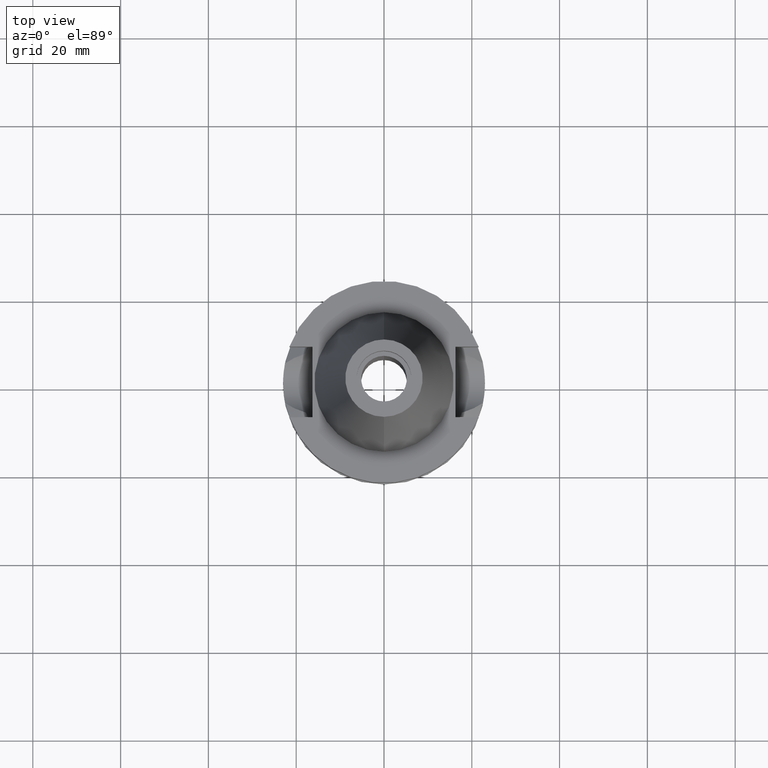
[diagram: clean part render]
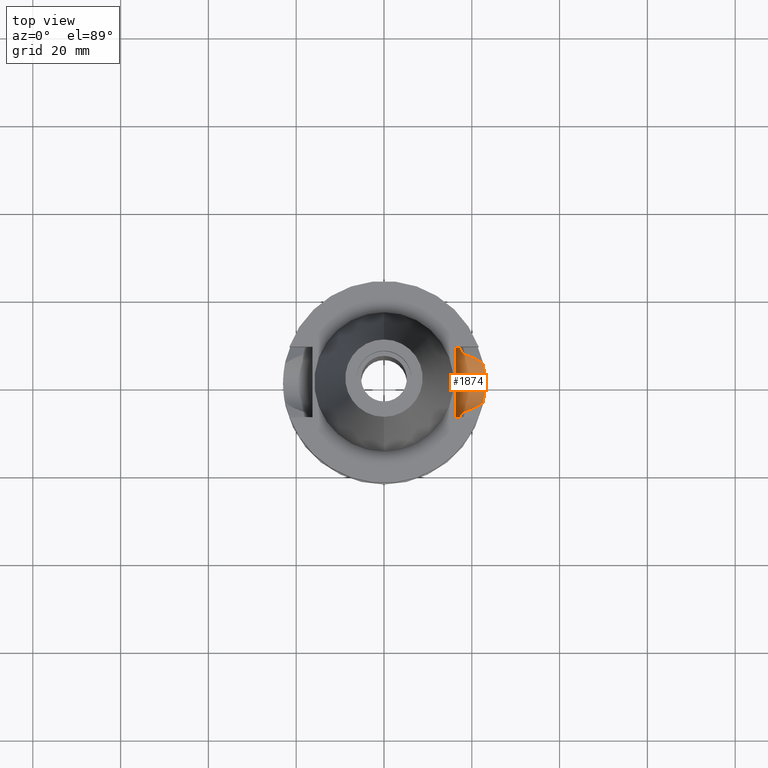
[diagram: same view with one face highlighted and labeled with its STEP entity id]
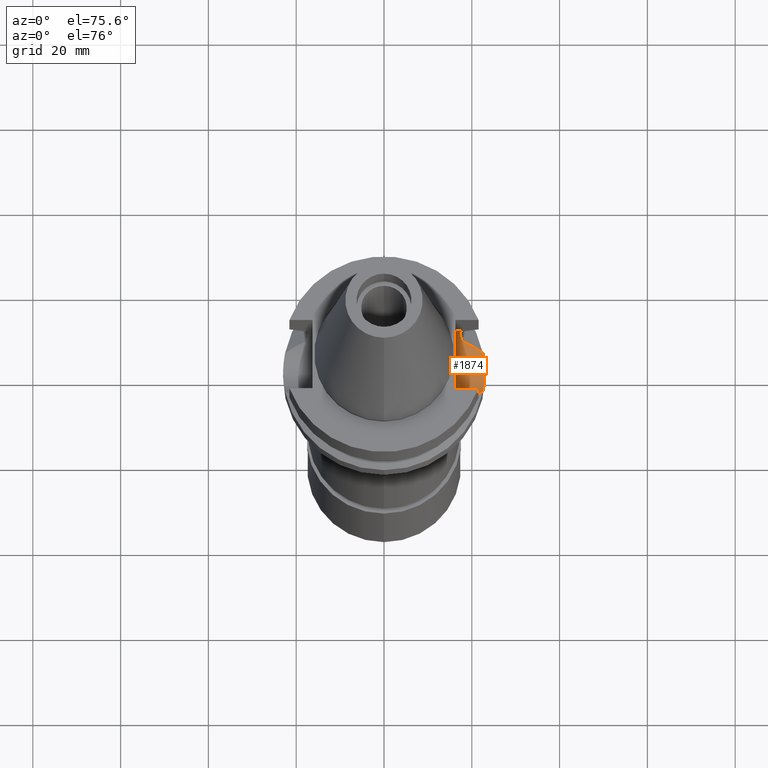
[diagram: same view with one face highlighted and labeled with its STEP entity id]
A machine part, top view. The second image highlights one B-rep face of the part: STEP entity #1874.
A second angle (auxiliary view) of the same face is appended — the face is thin or edge-on in the first view.
In plain terms, the highlighted cylindrical surface (edge-blend (fillet) strip) has radius 8.05 mm, axis along (1, 0, 0).
Its self-contained STEP definition (entity closure, byte-faithful):
#24 = EDGE_CURVE ( 'NONE', #715, #2758, #2265, .T. ) ;
#27 = VERTEX_POINT ( 'NONE', #560 ) ;
#42 = CIRCLE ( 'NONE', #2471, 8.050000000000000711 ) ;
#53 = CARTESIAN_POINT ( 'NONE',  ( 17.41740973184815644, -7.591861673416056888, -13.62698225825071852 ) ) ;
#75 = CARTESIAN_POINT ( 'NONE',  ( 22.55786346208000026, 4.488072640470000430, -17.63279163029000074 ) ) ;
#80 = CARTESIAN_POINT ( 'NONE',  ( 17.75736593456000278, -6.758398853743999624, -15.32339055352999857 ) ) ;
#113 = B_SPLINE_CURVE_WITH_KNOTS ( 'NONE', 3,
 ( #1086, #2974, #2478, #885 ),
 .UNSPECIFIED., .F., .F.,
 ( 4, 4 ),
 ( 0.0000000000000000000, 1.000000000000000000 ),
 .UNSPECIFIED. ) ;
#162 = CARTESIAN_POINT ( 'NONE',  ( 16.29999999999999716, 8.050000000000000711, -10.94999999999999929 ) ) ;
#175 = DIRECTION ( 'NONE',  ( 0.9999999999976612042, -2.130104035149915589E-06, -3.746083749046856312E-07 ) ) ;
#206 = CARTESIAN_POINT ( 'NONE',  ( 22.91431153747817362, 1.985557157309881804, -18.75241681137669758 ) ) ;
#211 = B_SPLINE_CURVE_WITH_KNOTS ( 'NONE', 3,
 ( #221, #431, #2742, #1156 ),
 .UNSPECIFIED., .F., .F.,
 ( 4, 4 ),
 ( 0.0000000000000000000, 1.000000000000000000 ),
 .UNSPECIFIED. ) ;
#221 = CARTESIAN_POINT ( 'NONE',  ( 17.23531622902000038, 7.996491146276001771, -11.87660607782000000 ) ) ;
#237 = ORIENTED_EDGE ( 'NONE', *, *, #24, .T. ) ;
#281 = CARTESIAN_POINT ( 'NONE',  ( 17.41902886904345138, -7.588145056447695325, -13.63749496349923618 ) ) ;
#293 = B_SPLINE_CURVE_WITH_KNOTS ( 'NONE', 3,
 ( #2914, #1547, #2211, #2242, #373, #2032, #2728, #1505, #2941, #831, #2452, #1067, #2717, #609, #1518 ),
 .UNSPECIFIED., .F., .F.,
 ( 4, 2, 2, 1, 1, 1, 2, 2, 4 ),
 ( 0.0000000000000000000, 0.2499999999999986677, 0.3749999999999985567, 0.4374999999999990563, 0.4687499999999993894, 0.4843749999999996114, 0.4921874999999995559, 0.4999999999999994449, 1.000000000000000000 ),
 .UNSPECIFIED. ) ;
#323 = CARTESIAN_POINT ( 'NONE',  ( 17.40050758145643783, -7.630565565486422841, -13.51508960621010758 ) ) ;
#340 = CARTESIAN_POINT ( 'NONE',  ( 17.72682660392796095, -8.027186146807153477, -11.61172867117429419 ) ) ;
#344 = ORIENTED_EDGE ( 'NONE', *, *, #1278, .F. ) ;
#373 = CARTESIAN_POINT ( 'NONE',  ( 22.80064244535082452, -3.023462465703598223, -18.41303962332590416 ) ) ;
#393 = AXIS2_PLACEMENT_3D ( 'NONE', #517, #2831, #1648 ) ;
#415 = CARTESIAN_POINT ( 'NONE',  ( 18.96736186693999926, -8.050001277873001015, -10.94999977540000025 ) ) ;
#424 = CARTESIAN_POINT ( 'NONE',  ( 17.32791110705245075, 7.797407455527095799, -13.04850004286706699 ) ) ;
#431 = CARTESIAN_POINT ( 'NONE',  ( 17.72598986981198976, 8.027133616248125492, -11.61218197823705545 ) ) ;
#495 = EDGE_CURVE ( 'NONE', #1063, #1550, #211, .T. ) ;
#511 = EDGE_CURVE ( 'NONE', #2350, #715, #2763, .T. ) ;
#512 = EDGE_CURVE ( 'NONE', #2014, #1096, #2979, .T. ) ;
#517 = CARTESIAN_POINT ( 'NONE',  ( 16.29999999999999716, 0.0000000000000000000, -10.94999999999999929 ) ) ;
#518 = CARTESIAN_POINT ( 'NONE',  ( 17.50086807624846585, -7.400179108504468140, -14.16641331453741870 ) ) ;
#535 = CARTESIAN_POINT ( 'NONE',  ( 17.36640948880068791, -7.707982828137880382, -13.27282317309947501 ) ) ;
#560 = CARTESIAN_POINT ( 'NONE',  ( 22.55786346208000026, -4.488072640470000430, -17.63279163029000074 ) ) ;
#577 = DIRECTION ( 'NONE',  ( 0.0000000000000000000, 0.0000000000000000000, -1.000000000000000000 ) ) ;
#598 = ORIENTED_EDGE ( 'NONE', *, *, #495, .T. ) ;
#609 = CARTESIAN_POINT ( 'NONE',  ( 23.00000000000000355, -0.7639032132355423332, -19.00000000000000355 ) ) ;
#622 = CARTESIAN_POINT ( 'NONE',  ( 17.45719485020201844, 7.500152504448616142, -13.87559139655189355 ) ) ;
#646 = CARTESIAN_POINT ( 'NONE',  ( 17.51072787940859854, 7.374839633894187507, -14.18046796346550309 ) ) ;
#670 = CARTESIAN_POINT ( 'NONE',  ( 22.88314600965571088, 2.314192953272692144, -18.66019681558668353 ) ) ;
#697 = CARTESIAN_POINT ( 'NONE',  ( 22.81276282094274777, 3.007048462252326360, -18.45119323513968723 ) ) ;
#699 = CARTESIAN_POINT ( 'NONE',  ( 16.29999999999999716, -8.050000000000000711, -10.94999999999999929 ) ) ;
#715 = VERTEX_POINT ( 'NONE', #75 ) ;
#766 = CARTESIAN_POINT ( 'NONE',  ( 18.96736186693999926, -8.050001277873001015, -10.94999977540000025 ) ) ;
#831 = CARTESIAN_POINT ( 'NONE',  ( 22.87768279850736519, -2.367574593139545769, -18.64397267214216924 ) ) ;
#863 = CARTESIAN_POINT ( 'NONE',  ( 16.29999999999999716, 0.0000000000000000000, -10.94999999999999929 ) ) ;
#870 = CARTESIAN_POINT ( 'NONE',  ( 17.23531135313000107, -7.996501749111999402, -11.87660739354000050 ) ) ;
#882 = CARTESIAN_POINT ( 'NONE',  ( 23.00000000000000355, 0.3819330746505427143, -19.00000000000000355 ) ) ;
#885 = CARTESIAN_POINT ( 'NONE',  ( 22.55786346208000026, -4.488072640470000430, -17.63279163029000074 ) ) ;
#896 = CARTESIAN_POINT ( 'NONE',  ( 22.88451061049226354, 2.300661898065142097, -18.66424747574817644 ) ) ;
#907 = VECTOR ( 'NONE', #175, 1000.000000000000000 ) ;
#929 = CARTESIAN_POINT ( 'NONE',  ( 22.89872483685815752, 2.155364106042530814, -18.70637446846981433 ) ) ;
#958 = CARTESIAN_POINT ( 'NONE',  ( 17.41455400305748924, -7.598412036632427480, -13.60833259785757754 ) ) ;
#963 = ORIENTED_EDGE ( 'NONE', *, *, #2818, .F. ) ;
#1022 = CARTESIAN_POINT ( 'NONE',  ( 17.23531622902000038, 7.996491146276001771, -11.87660607782000000 ) ) ;
#1063 = VERTEX_POINT ( 'NONE', #1022 ) ;
#1067 = CARTESIAN_POINT ( 'NONE',  ( 22.88083328931979565, -2.336958828920536302, -18.65332934399524234 ) ) ;
#1086 = CARTESIAN_POINT ( 'NONE',  ( 17.75736593456000278, -6.758398853743999624, -15.32339055352999857 ) ) ;
#1096 = VERTEX_POINT ( 'NONE', #1678 ) ;
#1117 = LINE ( 'NONE', #162, #907 ) ;
#1126 = CARTESIAN_POINT ( 'NONE',  ( 22.89052838222178465, 2.240151746993186865, -18.68209761430793492 ) ) ;
#1140 = CARTESIAN_POINT ( 'NONE',  ( 22.99017193261398262, 0.7694920434722931635, -18.97277318381274469 ) ) ;
#1156 = CARTESIAN_POINT ( 'NONE',  ( 18.96738966530000070, 8.049994318182998043, -10.95000099923000114 ) ) ;
#1173 = CARTESIAN_POINT ( 'NONE',  ( 22.55786346208000026, 4.488072640470000430, -17.63279163029000074 ) ) ;
#1175 = CARTESIAN_POINT ( 'NONE',  ( 23.00000000000000000, 0.0000000000000000000, -19.00000000000000000 ) ) ;
#1260 = EDGE_CURVE ( 'NONE', #1096, #27, #113, .T. ) ;
#1271 = CARTESIAN_POINT ( 'NONE',  ( 17.23531135313000107, -7.996501749111999402, -11.87660739354000050 ) ) ;
#1278 = EDGE_CURVE ( 'NONE', #1687, #1550, #1117, .T. ) ;
#1309 = CARTESIAN_POINT ( 'NONE',  ( 21.37344794608372922, 5.343258989363285139, -17.05846002348370760 ) ) ;
#1352 = B_SPLINE_CURVE_WITH_KNOTS ( 'NONE', 3,
 ( #1979, #2935, #1780, #1770, #646, #2921, #622, #1531, #1542, #2493, #2013, #2503, #424, #2497, #2940 ),
 .UNSPECIFIED., .F., .F.,
 ( 4, 2, 2, 1, 1, 1, 2, 2, 4 ),
 ( 0.0000000000000000000, 0.2500000000000016098, 0.3750000000000026645, 0.4375000000000037192, 0.4687500000000031641, 0.4843750000000026645, 0.4921875000000029421, 0.5000000000000032196, 1.000000000000000000 ),
 .UNSPECIFIED. ) ;
#1407 = ORIENTED_EDGE ( 'NONE', *, *, #1260, .T. ) ;
#1417 = CARTESIAN_POINT ( 'NONE',  ( 17.41029288300236999, -7.608179589561181899, -13.58035844461916675 ) ) ;
#1424 = EDGE_CURVE ( 'NONE', #1687, #2225, #42, .T. ) ;
#1451 = CARTESIAN_POINT ( 'NONE',  ( 17.38156622602873114, -7.673725376853987257, -13.38458314363632162 ) ) ;
#1488 = EDGE_LOOP ( 'NONE', ( #237, #2778, #598, #344, #1808, #963, #2195, #1894, #1407, #2628, #2680 ) ) ;
#1490 = CARTESIAN_POINT ( 'NONE',  ( 17.75736593456000278, 6.758398853743999624, -15.32339055352999857 ) ) ;
#1505 = CARTESIAN_POINT ( 'NONE',  ( 22.86637095346600290, -2.474873559165787551, -18.61035720453926245 ) ) ;
#1518 = CARTESIAN_POINT ( 'NONE',  ( 23.00000000000000000, 0.0000000000000000000, -19.00000000000000000 ) ) ;
#1531 = CARTESIAN_POINT ( 'NONE',  ( 17.43825996245988819, 7.543902337193857832, -13.75966030957123820 ) ) ;
#1542 = CARTESIAN_POINT ( 'NONE',  ( 17.42911851113775157, 7.564954524542320868, -13.70217975904774477 ) ) ;
#1547 = CARTESIAN_POINT ( 'NONE',  ( 22.63127597490366938, -4.119088095576081798, -17.88059666930751845 ) ) ;
#1550 = VERTEX_POINT ( 'NONE', #2024 ) ;
#1648 = DIRECTION ( 'NONE',  ( 0.0000000000000000000, 0.0000000000000000000, -1.000000000000000000 ) ) ;
#1665 = DIRECTION ( 'NONE',  ( -0.9999999999998816502, 4.790775581495907912E-07, -8.420253910452848297E-08 ) ) ;
#1678 = CARTESIAN_POINT ( 'NONE',  ( 17.75736593456000278, -6.758398853743999624, -15.32339055352999857 ) ) ;
#1687 = VERTEX_POINT ( 'NONE', #2255 ) ;
#1709 = CARTESIAN_POINT ( 'NONE',  ( 19.77328210357706340, 6.137069160724234251, -16.28355951939463964 ) ) ;
#1728 = EDGE_CURVE ( 'NONE', #27, #2350, #293, .T. ) ;
#1742 = CARTESIAN_POINT ( 'NONE',  ( 17.23531135313000107, -7.996501749111999402, -11.87660739354000050 ) ) ;
#1770 = CARTESIAN_POINT ( 'NONE',  ( 17.53683850607051653, 7.312769253924538582, -14.31902480999137950 ) ) ;
#1780 = CARTESIAN_POINT ( 'NONE',  ( 17.62113139266513429, 7.108367418708962937, -14.74095000844944536 ) ) ;
#1808 = ORIENTED_EDGE ( 'NONE', *, *, #1424, .T. ) ;
#1826 = FACE_OUTER_BOUND ( 'NONE', #1488, .T. ) ;
#1827 = CARTESIAN_POINT ( 'NONE',  ( 22.94840264622341763, 1.547803451973103650, -18.85231193866452770 ) ) ;
#1874 = ADVANCED_FACE ( 'NONE', ( #1826 ), #2850, .F. ) ;
#1880 = B_SPLINE_CURVE_WITH_KNOTS ( 'NONE', 3,
 ( #1921, #2145, #340, #1271 ),
 .UNSPECIFIED., .F., .F.,
 ( 4, 4 ),
 ( 0.0000000000000000000, 1.000000000000000000 ),
 .UNSPECIFIED. ) ;
#1894 = ORIENTED_EDGE ( 'NONE', *, *, #512, .T. ) ;
#1921 = CARTESIAN_POINT ( 'NONE',  ( 18.96736186693999926, -8.050001277873001015, -10.94999977540000025 ) ) ;
#1979 = CARTESIAN_POINT ( 'NONE',  ( 17.75736593456000278, 6.758398853743999624, -15.32339055352999857 ) ) ;
#2013 = CARTESIAN_POINT ( 'NONE',  ( 17.42272085241554791, 7.579664041000407693, -13.66132223650644661 ) ) ;
#2014 = VERTEX_POINT ( 'NONE', #1742 ) ;
#2024 = CARTESIAN_POINT ( 'NONE',  ( 18.96738966530000070, 8.049994318182998043, -10.95000099923000114 ) ) ;
#2032 = CARTESIAN_POINT ( 'NONE',  ( 22.83389994367262332, -2.758037875469896427, -18.51337712286557391 ) ) ;
#2083 = CARTESIAN_POINT ( 'NONE',  ( 17.61322740984523350, -7.137115852225650592, -14.73814199246502277 ) ) ;
#2096 = EDGE_CURVE ( 'NONE', #2758, #1063, #1352, .T. ) ;
#2126 = VERTEX_POINT ( 'NONE', #415 ) ;
#2144 = CARTESIAN_POINT ( 'NONE',  ( 17.32020187249956322, -7.811452264125253286, -12.90108126309845105 ) ) ;
#2145 = CARTESIAN_POINT ( 'NONE',  ( 18.30417677519795916, -8.050000009833846448, -11.30245973939780235 ) ) ;
#2177 = DIRECTION ( 'NONE',  ( -1.000000000000000000, 0.0000000000000000000, 0.0000000000000000000 ) ) ;
#2195 = ORIENTED_EDGE ( 'NONE', *, *, #2458, .T. ) ;
#2211 = CARTESIAN_POINT ( 'NONE',  ( 22.69499876048471521, -3.748130140692889967, -18.08542776788720374 ) ) ;
#2225 = VERTEX_POINT ( 'NONE', #699 ) ;
#2242 = CARTESIAN_POINT ( 'NONE',  ( 22.77604834799229749, -3.203223500690866032, -18.33795888254654471 ) ) ;
#2255 = CARTESIAN_POINT ( 'NONE',  ( 16.29999999999999716, 8.050000000000000711, -10.94999999999999929 ) ) ;
#2265 = B_SPLINE_CURVE_WITH_KNOTS ( 'NONE', 3,
 ( #2450, #1309, #1709, #1490 ),
 .UNSPECIFIED., .F., .F.,
 ( 4, 4 ),
 ( 0.0000000000000000000, 1.000000000000000000 ),
 .UNSPECIFIED. ) ;
#2279 = CARTESIAN_POINT ( 'NONE',  ( 22.96068773045593048, 1.352966403416411056, -18.88792219678389372 ) ) ;
#2322 = CARTESIAN_POINT ( 'NONE',  ( 22.70469624451347457, 3.750064563675767459, -18.12842789147290290 ) ) ;
#2340 = CARTESIAN_POINT ( 'NONE',  ( 17.27395772733964208, -7.913379800517060580, -12.45762674838768547 ) ) ;
#2350 = VERTEX_POINT ( 'NONE', #1175 ) ;
#2450 = CARTESIAN_POINT ( 'NONE',  ( 22.55786346208000026, 4.488072640470000430, -17.63279163029000074 ) ) ;
#2452 = CARTESIAN_POINT ( 'NONE',  ( 22.87988649924523799, -2.346199435548223633, -18.65051771911367240 ) ) ;
#2458 = EDGE_CURVE ( 'NONE', #2126, #2014, #1880, .T. ) ;
#2471 = AXIS2_PLACEMENT_3D ( 'NONE', #863, #2177, #577 ) ;
#2478 = CARTESIAN_POINT ( 'NONE',  ( 21.37344794606756793, -5.343258989366610479, -17.05846002348147294 ) ) ;
#2493 = CARTESIAN_POINT ( 'NONE',  ( 17.42527060183159904, 7.573803216216433043, -13.67765101995079924 ) ) ;
#2497 = CARTESIAN_POINT ( 'NONE',  ( 17.26628505399860103, 7.929743580510503875, -12.45264544718342314 ) ) ;
#2503 = CARTESIAN_POINT ( 'NONE',  ( 17.42163631444919858, 7.582155995951294969, -13.65434988420305729 ) ) ;
#2570 = CARTESIAN_POINT ( 'NONE',  ( 17.33753429471983054, -7.772924035376650664, -13.04956639087439463 ) ) ;
#2612 = CARTESIAN_POINT ( 'NONE',  ( 17.25079912590088327, -7.963111191504657960, -12.16468723347674441 ) ) ;
#2625 = CARTESIAN_POINT ( 'NONE',  ( 17.75736593456000278, 6.758398853743999624, -15.32339055352999857 ) ) ;
#2628 = ORIENTED_EDGE ( 'NONE', *, *, #1728, .T. ) ;
#2680 = ORIENTED_EDGE ( 'NONE', *, *, #511, .T. ) ;
#2717 = CARTESIAN_POINT ( 'NONE',  ( 22.96068727070343840, -1.550908896519527680, -18.89044702255036157 ) ) ;
#2728 = CARTESIAN_POINT ( 'NONE',  ( 22.84962028090453146, -2.626375749230420276, -18.56047594370135201 ) ) ;
#2730 = CARTESIAN_POINT ( 'NONE',  ( 22.92628949460488386, 1.839699739651366572, -18.78759767042182460 ) ) ;
#2742 = CARTESIAN_POINT ( 'NONE',  ( 18.30334768190532557, 8.049999956193227391, -11.30291651679201870 ) ) ;
#2758 = VERTEX_POINT ( 'NONE', #2625 ) ;
#2763 = B_SPLINE_CURVE_WITH_KNOTS ( 'NONE', 3,
 ( #2971, #882, #1140, #2279, #1827, #2730, #206, #929, #1126, #2770, #896, #670, #697, #2322, #1173 ),
 .UNSPECIFIED., .F., .F.,
 ( 4, 2, 2, 1, 1, 1, 2, 2, 4 ),
 ( 0.0000000000000000000, 0.2499999999999957812, 0.3749999999999935607, 0.4374999999999925060, 0.4687499999999921174, 0.4843749999999922839, 0.4921874999999924505, 0.4999999999999926725, 1.000000000000000000 ),
 .UNSPECIFIED. ) ;
#2770 = CARTESIAN_POINT ( 'NONE',  ( 22.88692923645053057, 2.276461704504378236, -18.67142353418207179 ) ) ;
#2778 = ORIENTED_EDGE ( 'NONE', *, *, #2096, .T. ) ;
#2814 = LINE ( 'NONE', #766, #2992 ) ;
#2818 = EDGE_CURVE ( 'NONE', #2126, #2225, #2814, .T. ) ;
#2831 = DIRECTION ( 'NONE',  ( 1.000000000000000000, 0.0000000000000000000, 0.0000000000000000000 ) ) ;
#2850 = CYLINDRICAL_SURFACE ( 'NONE', #393, 8.050000000000000711 ) ;
#2914 = CARTESIAN_POINT ( 'NONE',  ( 22.55786346208000026, -4.488072640470000430, -17.63279163029000074 ) ) ;
#2921 = CARTESIAN_POINT ( 'NONE',  ( 17.47454244272013923, 7.459747681859946411, -13.97656327294564527 ) ) ;
#2935 = CARTESIAN_POINT ( 'NONE',  ( 17.68527465920666586, 6.947815191073233088, -15.03067689317560784 ) ) ;
#2940 = CARTESIAN_POINT ( 'NONE',  ( 17.23531622902000038, 7.996491146276001771, -11.87660607782000000 ) ) ;
#2941 = CARTESIAN_POINT ( 'NONE',  ( 22.87434885952780306, -2.399678633108523584, -18.63406941506829284 ) ) ;
#2971 = CARTESIAN_POINT ( 'NONE',  ( 23.00000000000000000, 0.0000000000000000000, -19.00000000000000000 ) ) ;
#2974 = CARTESIAN_POINT ( 'NONE',  ( 19.77328210356089855, -6.137069160726412065, -16.28355951939127166 ) ) ;
#2979 = B_SPLINE_CURVE_WITH_KNOTS ( 'NONE', 3,
 ( #870, #2612, #2340, #2144, #2570, #535, #1451, #323, #1417, #958, #53, #281, #518, #2083, #80 ),
 .UNSPECIFIED., .F., .F.,
 ( 4, 2, 2, 1, 1, 1, 2, 2, 4 ),
 ( 0.0000000000000000000, 0.2500000000000029421, 0.3750000000000044409, 0.4375000000000056621, 0.4687500000000063283, 0.4843750000000068279, 0.4921875000000066058, 0.5000000000000064393, 1.000000000000000000 ),
 .UNSPECIFIED. ) ;
#2992 = VECTOR ( 'NONE', #1665, 1000.000000000000114 ) ;